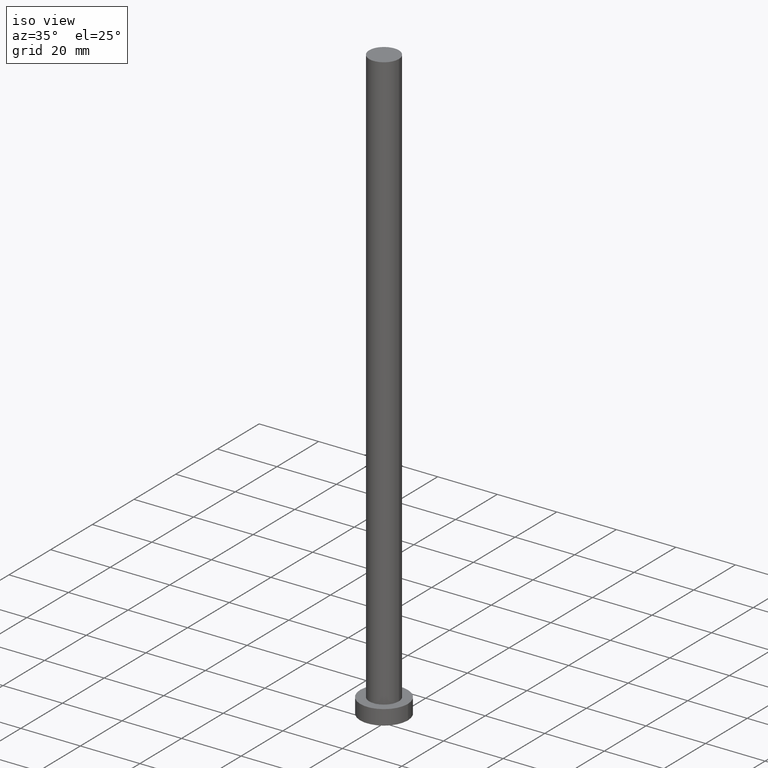
[diagram: clean part render]
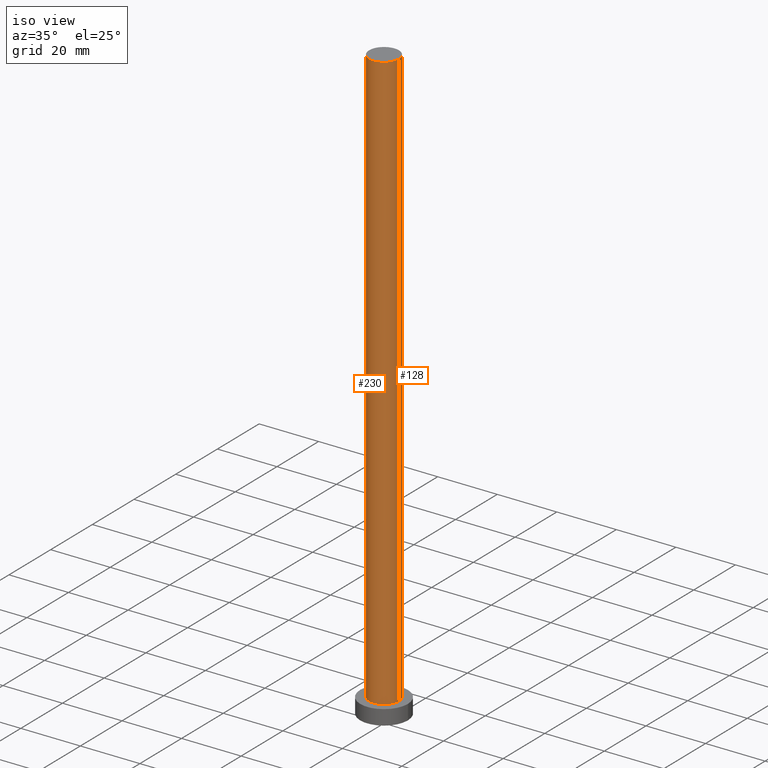
[diagram: same view with one multi-face feature highlighted, each face labeled with its STEP entity id]
A machine part, iso view. The highlighted faces form ONE feature: a constant-radius fillet chain: 2 tangent blend faces with common blend radius 5 mm. The faces share edges in the B-rep.
Their STEP definitions:
[1] entity #230 (Cylinder):
#4 = CARTESIAN_POINT ( 'NONE',  ( -5.000000000000000888, 0.000000000000000000, 5.000000000000000000 ) ) ;
#7 = CARTESIAN_POINT ( 'NONE',  ( 5.000000000000000888, 6.123233995736767268E-16, 200.0000000000000000 ) ) ;
#17 = EDGE_CURVE ( 'NONE', #229, #48, #18, .T. ) ;
#18 = LINE ( 'NONE', #186, #135 ) ;
#21 = CARTESIAN_POINT ( 'NONE',  ( -5.000000000000000888, 0.000000000000000000, 200.0000000000000000 ) ) ;
#38 = DIRECTION ( 'NONE',  ( -0.000000000000000000, -0.000000000000000000, -1.000000000000000000 ) ) ;
#46 = ORIENTED_EDGE ( 'NONE', *, *, #88, .F. ) ;
#48 = VERTEX_POINT ( 'NONE', #104 ) ;
#51 = VERTEX_POINT ( 'NONE', #21 ) ;
#57 = EDGE_CURVE ( 'NONE', #51, #70, #117, .T. ) ;
#61 = DIRECTION ( 'NONE',  ( -0.000000000000000000, -0.000000000000000000, -1.000000000000000000 ) ) ;
#67 = CARTESIAN_POINT ( 'NONE',  ( 0.000000000000000000, 0.000000000000000000, 5.000000000000000000 ) ) ;
#70 = VERTEX_POINT ( 'NONE', #4 ) ;
#71 = CIRCLE ( 'NONE', #114, 5.000000000000000888 ) ;
#72 = ORIENTED_EDGE ( 'NONE', *, *, #213, .T. ) ;
#81 = CARTESIAN_POINT ( 'NONE',  ( 0.000000000000000000, 0.000000000000000000, 200.0000000000000000 ) ) ;
#83 = AXIS2_PLACEMENT_3D ( 'NONE', #81, #100, #197 ) ;
#88 = EDGE_CURVE ( 'NONE', #51, #229, #193, .T. ) ;
#89 = EDGE_LOOP ( 'NONE', ( #189, #46, #233, #72 ) ) ;
#92 = VECTOR ( 'NONE', #61, 1000.000000000000000 ) ;
#100 = DIRECTION ( 'NONE',  ( 0.000000000000000000, 0.000000000000000000, 1.000000000000000000 ) ) ;
#104 = CARTESIAN_POINT ( 'NONE',  ( 5.000000000000000888, 6.123233995736767268E-16, 5.000000000000000000 ) ) ;
#107 = DIRECTION ( 'NONE',  ( -1.000000000000000000, 0.000000000000000000, 0.000000000000000000 ) ) ;
#110 = DIRECTION ( 'NONE',  ( 1.000000000000000000, 0.000000000000000000, 0.000000000000000000 ) ) ;
#114 = AXIS2_PLACEMENT_3D ( 'NONE', #67, #143, #110 ) ;
#117 = LINE ( 'NONE', #196, #92 ) ;
#135 = VECTOR ( 'NONE', #38, 1000.000000000000000 ) ;
#143 = DIRECTION ( 'NONE',  ( 0.000000000000000000, 0.000000000000000000, 1.000000000000000000 ) ) ;
#147 = CYLINDRICAL_SURFACE ( 'NONE', #228, 5.000000000000000888 ) ;
#186 = CARTESIAN_POINT ( 'NONE',  ( 5.000000000000000888, 6.123233995736767268E-16, 200.0000000000000000 ) ) ;
#189 = ORIENTED_EDGE ( 'NONE', *, *, #17, .F. ) ;
#193 = CIRCLE ( 'NONE', #83, 5.000000000000000888 ) ;
#196 = CARTESIAN_POINT ( 'NONE',  ( -5.000000000000000888, 0.000000000000000000, 200.0000000000000000 ) ) ;
#197 = DIRECTION ( 'NONE',  ( 1.000000000000000000, 0.000000000000000000, 0.000000000000000000 ) ) ;
#204 = DIRECTION ( 'NONE',  ( -0.000000000000000000, -0.000000000000000000, -1.000000000000000000 ) ) ;
#213 = EDGE_CURVE ( 'NONE', #70, #48, #71, .T. ) ;
#219 = FACE_OUTER_BOUND ( 'NONE', #89, .T. ) ;
#226 = CARTESIAN_POINT ( 'NONE',  ( 0.000000000000000000, 0.000000000000000000, 200.0000000000000000 ) ) ;
#228 = AXIS2_PLACEMENT_3D ( 'NONE', #226, #204, #107 ) ;
#229 = VERTEX_POINT ( 'NONE', #7 ) ;
#230 = ADVANCED_FACE ( 'NONE', ( #219 ), #147, .T. ) ;
#233 = ORIENTED_EDGE ( 'NONE', *, *, #57, .T. ) ;
[2] entity #128 (Cylinder):
#4 = CARTESIAN_POINT ( 'NONE',  ( -5.000000000000000888, 0.000000000000000000, 5.000000000000000000 ) ) ;
#7 = CARTESIAN_POINT ( 'NONE',  ( 5.000000000000000888, 6.123233995736767268E-16, 200.0000000000000000 ) ) ;
#17 = EDGE_CURVE ( 'NONE', #229, #48, #18, .T. ) ;
#18 = LINE ( 'NONE', #186, #135 ) ;
#20 = AXIS2_PLACEMENT_3D ( 'NONE', #102, #236, #181 ) ;
#21 = CARTESIAN_POINT ( 'NONE',  ( -5.000000000000000888, 0.000000000000000000, 200.0000000000000000 ) ) ;
#24 = DIRECTION ( 'NONE',  ( 0.000000000000000000, 0.000000000000000000, 1.000000000000000000 ) ) ;
#30 = DIRECTION ( 'NONE',  ( 1.000000000000000000, 0.000000000000000000, 0.000000000000000000 ) ) ;
#38 = DIRECTION ( 'NONE',  ( -0.000000000000000000, -0.000000000000000000, -1.000000000000000000 ) ) ;
#39 = FACE_OUTER_BOUND ( 'NONE', #172, .T. ) ;
#48 = VERTEX_POINT ( 'NONE', #104 ) ;
#51 = VERTEX_POINT ( 'NONE', #21 ) ;
#57 = EDGE_CURVE ( 'NONE', #51, #70, #117, .T. ) ;
#58 = ORIENTED_EDGE ( 'NONE', *, *, #57, .F. ) ;
#61 = DIRECTION ( 'NONE',  ( -0.000000000000000000, -0.000000000000000000, -1.000000000000000000 ) ) ;
#66 = EDGE_CURVE ( 'NONE', #229, #51, #237, .T. ) ;
#70 = VERTEX_POINT ( 'NONE', #4 ) ;
#86 = CARTESIAN_POINT ( 'NONE',  ( 0.000000000000000000, 0.000000000000000000, 5.000000000000000000 ) ) ;
#92 = VECTOR ( 'NONE', #61, 1000.000000000000000 ) ;
#102 = CARTESIAN_POINT ( 'NONE',  ( 0.000000000000000000, 0.000000000000000000, 200.0000000000000000 ) ) ;
#104 = CARTESIAN_POINT ( 'NONE',  ( 5.000000000000000888, 6.123233995736767268E-16, 5.000000000000000000 ) ) ;
#117 = LINE ( 'NONE', #196, #92 ) ;
#123 = AXIS2_PLACEMENT_3D ( 'NONE', #140, #24, #200 ) ;
#128 = ADVANCED_FACE ( 'NONE', ( #39 ), #199, .T. ) ;
#135 = VECTOR ( 'NONE', #38, 1000.000000000000000 ) ;
#140 = CARTESIAN_POINT ( 'NONE',  ( 0.000000000000000000, 0.000000000000000000, 200.0000000000000000 ) ) ;
#154 = ORIENTED_EDGE ( 'NONE', *, *, #183, .T. ) ;
#167 = AXIS2_PLACEMENT_3D ( 'NONE', #86, #214, #30 ) ;
#172 = EDGE_LOOP ( 'NONE', ( #225, #252, #154, #58 ) ) ;
#181 = DIRECTION ( 'NONE',  ( -1.000000000000000000, 0.000000000000000000, 0.000000000000000000 ) ) ;
#183 = EDGE_CURVE ( 'NONE', #48, #70, #195, .T. ) ;
#186 = CARTESIAN_POINT ( 'NONE',  ( 5.000000000000000888, 6.123233995736767268E-16, 200.0000000000000000 ) ) ;
#195 = CIRCLE ( 'NONE', #167, 5.000000000000000888 ) ;
#196 = CARTESIAN_POINT ( 'NONE',  ( -5.000000000000000888, 0.000000000000000000, 200.0000000000000000 ) ) ;
#199 = CYLINDRICAL_SURFACE ( 'NONE', #20, 5.000000000000000888 ) ;
#200 = DIRECTION ( 'NONE',  ( 1.000000000000000000, 0.000000000000000000, 0.000000000000000000 ) ) ;
#214 = DIRECTION ( 'NONE',  ( 0.000000000000000000, 0.000000000000000000, 1.000000000000000000 ) ) ;
#225 = ORIENTED_EDGE ( 'NONE', *, *, #66, .F. ) ;
#229 = VERTEX_POINT ( 'NONE', #7 ) ;
#236 = DIRECTION ( 'NONE',  ( -0.000000000000000000, -0.000000000000000000, -1.000000000000000000 ) ) ;
#237 = CIRCLE ( 'NONE', #123, 5.000000000000000888 ) ;
#252 = ORIENTED_EDGE ( 'NONE', *, *, #17, .T. ) ;